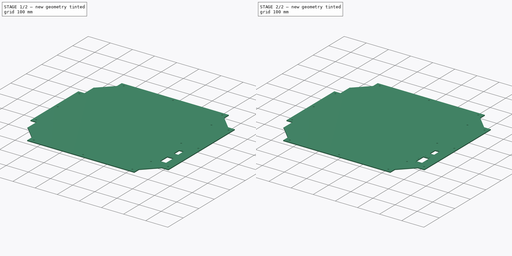
[diagram: build sequence overview — one tinted view per stage of 2, left to right]
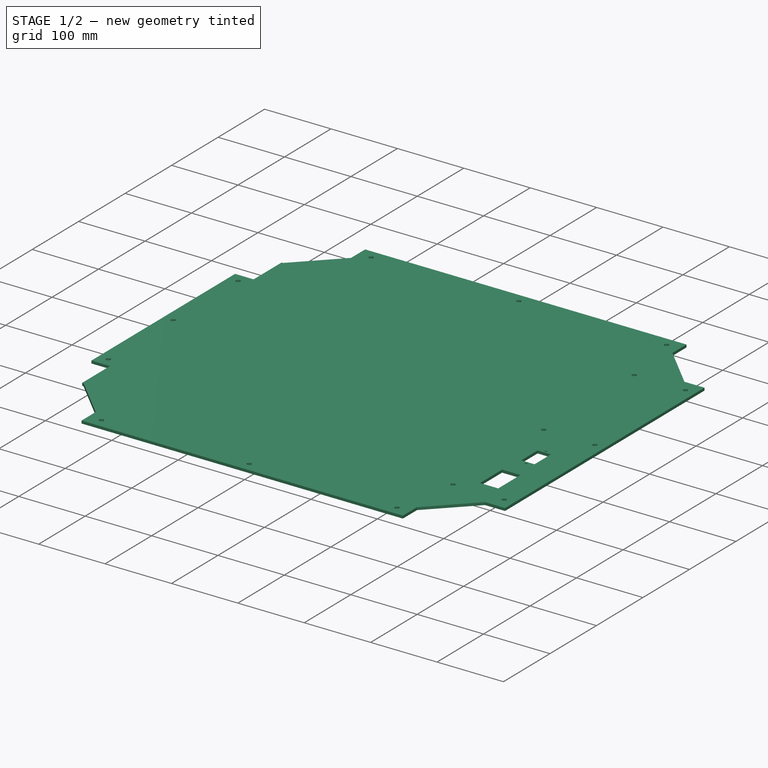
[diagram: stage 1 of 2 — iso view after this stage's code; geometry added in this stage tinted green]
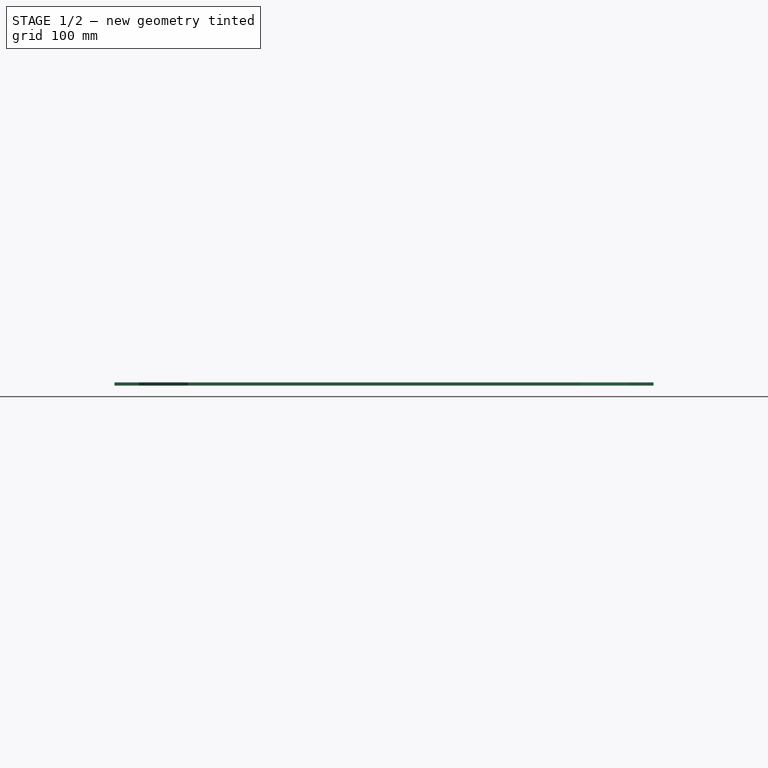
[diagram: stage 1 of 2 — front view after this stage's code; geometry added in this stage tinted green]
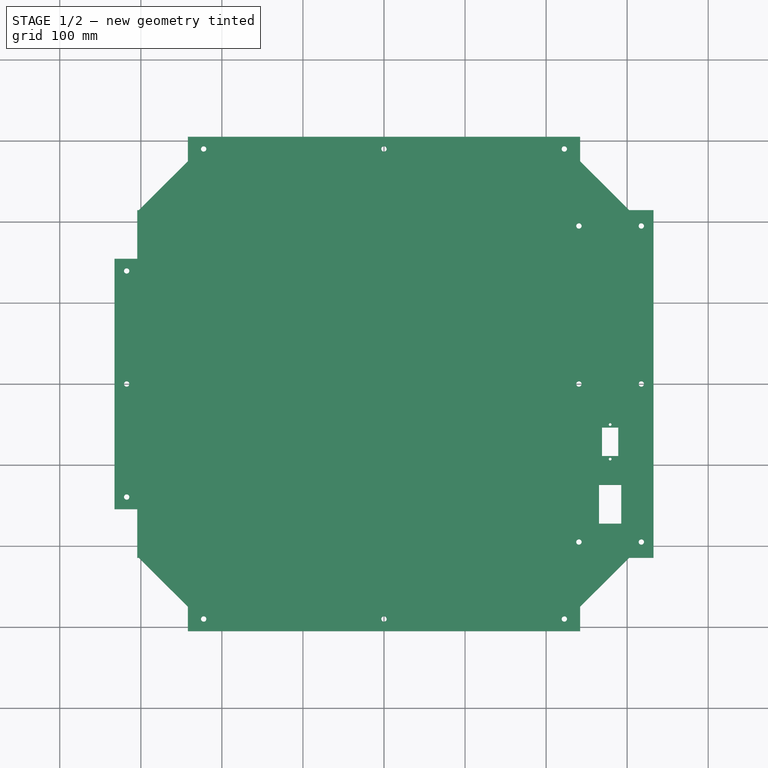
[diagram: stage 1 of 2 — top view after this stage's code; geometry added in this stage tinted green]
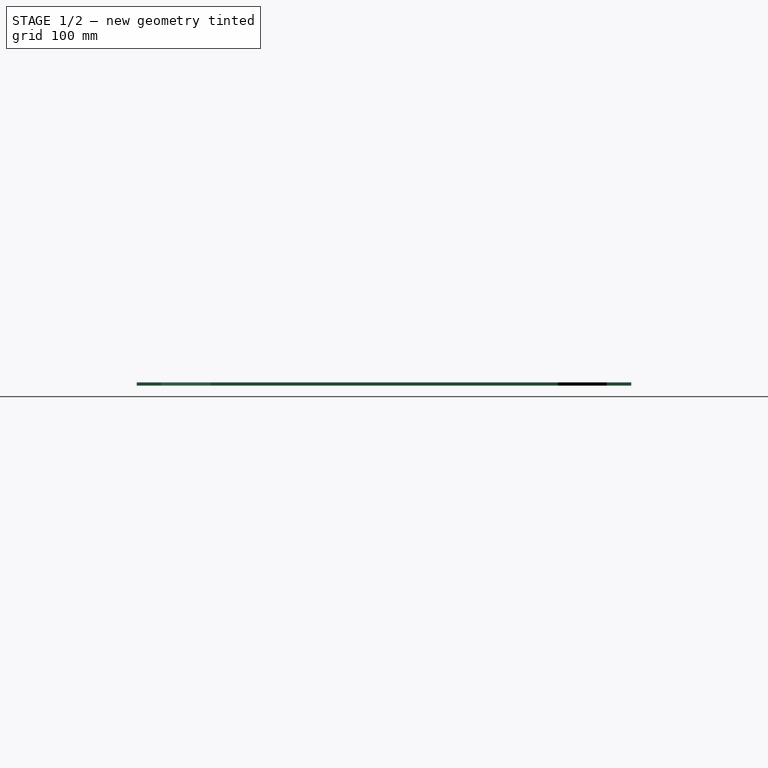
[diagram: stage 1 of 2 — right view after this stage's code; geometry added in this stage tinted green]
FCSTD DOCUMENT  (FreeCAD 0.20R)
Label: panel_side_right_400_v2
License: All rights reserved
LicenseURL: http://en.wikipedia.org/wiki/All_rights_reserved
objects: Sketcher::SketchObject×2, PartDesign::Pocket×2, Part::Feature×1, PartDesign::FeatureBase×1, PartDesign::Body×1
note: 9 computed .brp shape members not serialized (recipe doc carries the construction recipe); baked Part::Feature solids carry a one-line shape summary decoded from their .brp

FEATURE [Part::Feature] Defeatured003
  shape: bbox 665 x 610 x 4 mm, 47 faces (baked)
FEATURE [PartDesign::FeatureBase] BaseFeature
  BaseFeature = -> Defeatured003
FEATURE [Sketcher::SketchObject] Sketch
  ExternalGeometry = -> [BaseFeature]
  FullyConstrained = true
  MapMode = 5
  Support = -> [BaseFeature]
  sketch-geometry (4):
    g0: LineSegment StartX=265.25 StartY=-125.35 StartZ=0 EndX=292.75 EndY=-125.35 EndZ=0
    g1: LineSegment StartX=292.75 StartY=-125.35 StartZ=0 EndX=292.75 EndY=-124.55 EndZ=0
    g2: LineSegment StartX=292.75 StartY=-124.55 StartZ=0 EndX=265.25 EndY=-124.55 EndZ=0
    g3: LineSegment StartX=265.25 StartY=-124.55 StartZ=0 EndX=265.25 EndY=-125.35 EndZ=0
  constraints (12):
    c: DistanceX(g-3,g-3) = 27.5
    c: DistanceY(g-4,g-4) = 47
    c: Coincident(g0,g1)
    c: Coincident(g1,g2)
    c: Coincident(g2,g3)
    c: Coincident(g3,g0)
    c: Horizontal(g2)
    c: Vertical(g1)
    c: Vertical(g3)
    c: Coincident(g0,g-6)
    c: Coincident(g0,g-4)
    c: DistanceY(g1,g1) = 0.8
FEATURE [PartDesign::Pocket] Pocket
  BaseFeature = -> BaseFeature
  Direction = (0,0,-1)
  Length = 5
  Length2 = 5
  Profile = -> Sketch
  ReferenceAxis = -> Sketch [N_Axis]
  Type = 1
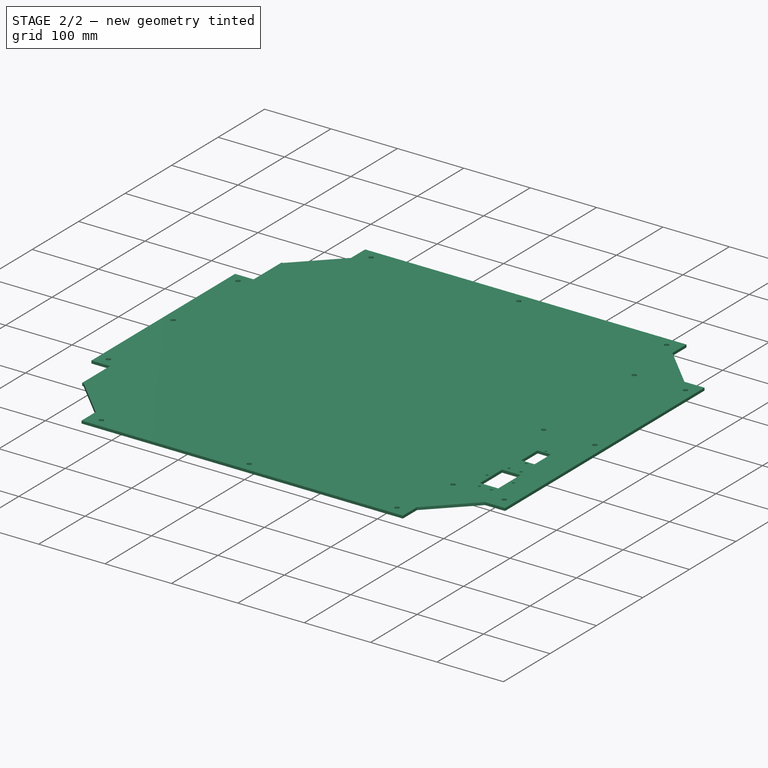
[diagram: stage 2 of 2 — iso view after this stage's code; geometry added in this stage tinted green]
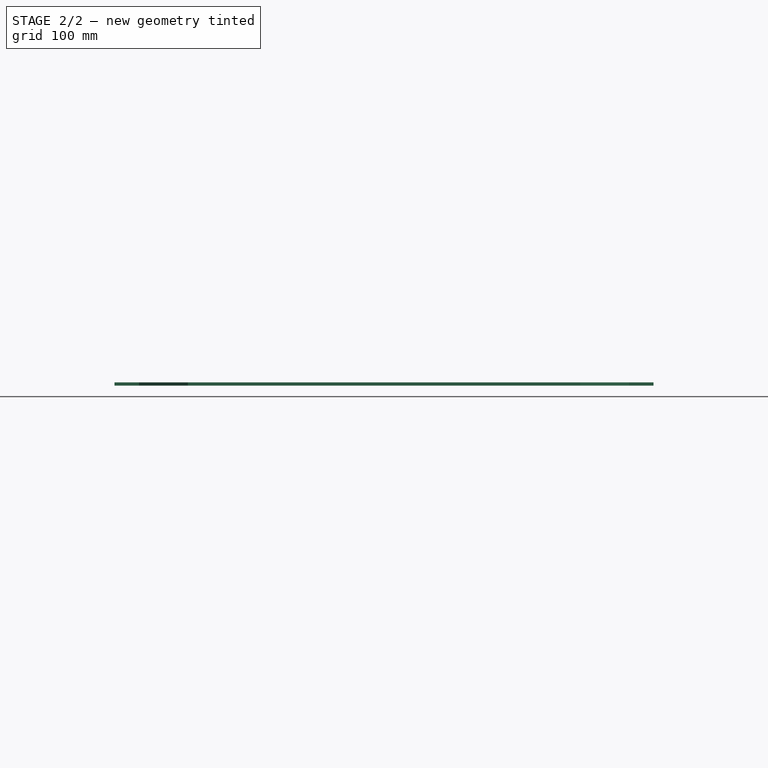
[diagram: stage 2 of 2 — front view after this stage's code; geometry added in this stage tinted green]
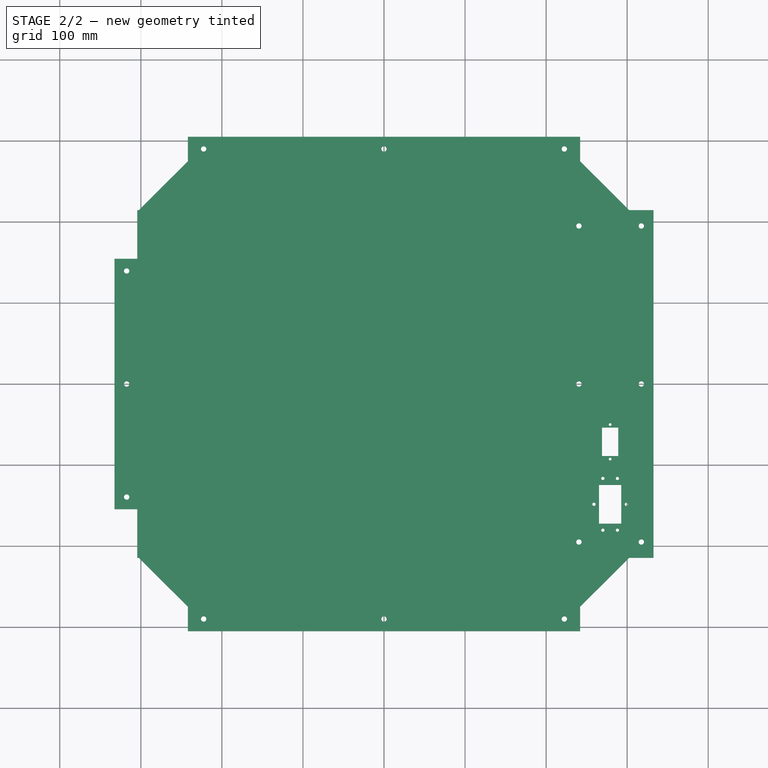
[diagram: stage 2 of 2 — top view after this stage's code; geometry added in this stage tinted green]
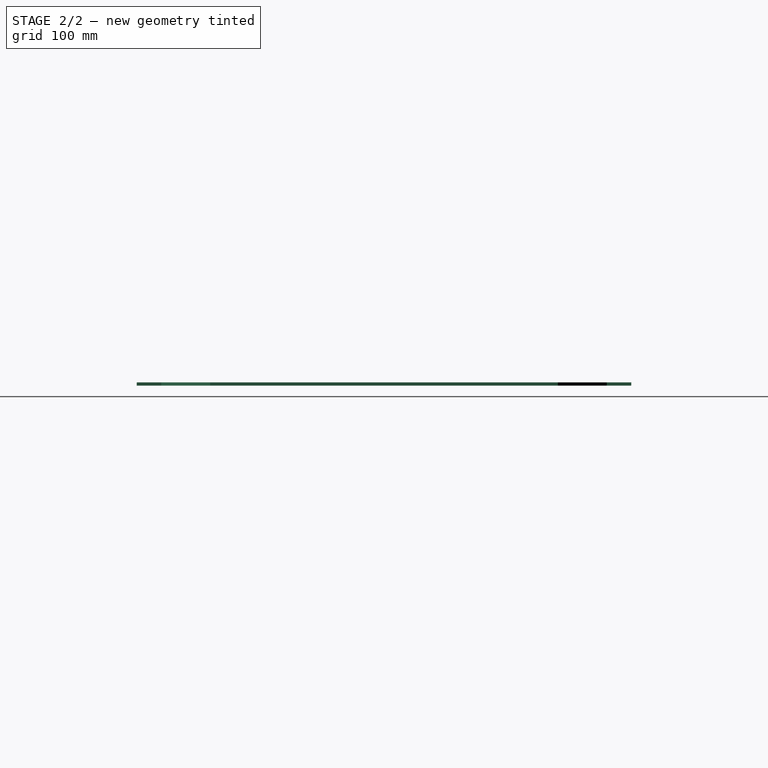
[diagram: stage 2 of 2 — right view after this stage's code; geometry added in this stage tinted green]
FEATURE [Sketcher::SketchObject] Sketch001
  ExternalGeometry = -> [Pocket]
  FullyConstrained = true
  MapMode = 5
  Support = -> [Pocket]
  sketch-geometry (12):
    g0: Circle CenterX=259 CenterY=-148.45 CenterZ=0 NormalX=0 NormalY=0 NormalZ=1 AngleXU=0 Radius=2
    g1: Circle CenterX=299 CenterY=-148.45 CenterZ=0 NormalX=0 NormalY=0 NormalZ=1 AngleXU=0 Radius=2
    g2: LineSegment StartX=259 StartY=-148.45 StartZ=0 EndX=299 EndY=-148.45 EndZ=0
    g3: LineSegment StartX=279 StartY=-124.55 StartZ=0 EndX=279 EndY=-172.35 EndZ=0
    g4: LineSegment StartX=270 StartY=-116.55 StartZ=0 EndX=288 EndY=-116.55 EndZ=0
    g5: LineSegment StartX=288 StartY=-116.55 StartZ=0 EndX=288 EndY=-180.35 EndZ=0
    g6: LineSegment StartX=288 StartY=-180.35 StartZ=0 EndX=270 EndY=-180.35 EndZ=0
    g7: LineSegment StartX=270 StartY=-180.35 StartZ=0 EndX=270 EndY=-116.55 EndZ=0
    g8: Circle CenterX=270 CenterY=-116.55 CenterZ=0 NormalX=0 NormalY=0 NormalZ=1 AngleXU=0 Radius=2
    g9: Circle CenterX=288 CenterY=-116.55 CenterZ=0 NormalX=0 NormalY=0 NormalZ=1 AngleXU=0 Radius=2
    g10: Circle CenterX=270 CenterY=-180.35 CenterZ=0 NormalX=0 NormalY=0 NormalZ=1 AngleXU=0 Radius=2
    g11: Circle CenterX=288 CenterY=-180.35 CenterZ=0 NormalX=0 NormalY=0 NormalZ=1 AngleXU=0 Radius=2
  constraints (28):
    c: Coincident(g2,g0)
    c: Coincident(g2,g1)
    c: Symmetric(g-3,g-5,g2)
    c: DistanceX(g2,g2) = 40
    c: PointOnObject(g3,g-3)
    c: PointOnObject(g3,g-4)
    c: Symmetric(g-3,g-3,g3)
    c: Symmetric(g1,g0,g3)
    c: Equal(g0,g1)
    c: Diameter(g0) = 4
    c: Coincident(g4,g5)
    c: Coincident(g5,g6)
    c: Coincident(g6,g7)
    c: Coincident(g7,g4)
    c: Horizontal(g6)
    c: Vertical(g7)
    c: Symmetric(g4,g4,g3)
    c: Symmetric(g4,g5,g2)
    c: Distance(g4,g-3) = 8
    c: DistanceX(g4,g4) = 18
    c: Coincident(g8,g4)
    c: Coincident(g4,g9)
    c: Coincident(g10,g6)
    c: Coincident(g11,g5)
    c: Equal(g10,g11)
    c: Equal(g11,g9)
    c: Equal(g9,g8)
    c: Equal(g8,g1)
FEATURE [PartDesign::Pocket] Pocket001
  BaseFeature = -> Pocket
  Direction = (0,0,-1)
  Length = 5
  Length2 = 5
  Profile = -> Sketch001
  ReferenceAxis = -> Sketch001 [N_Axis]
  Type = 0
FEATURE [PartDesign::Body] Body
  BaseFeature = -> Defeatured003
  Group = -> [BaseFeature,Sketch,Pocket,Sketch001,Pocket001]
  Origin = -> Origin
  Tip = -> Pocket001
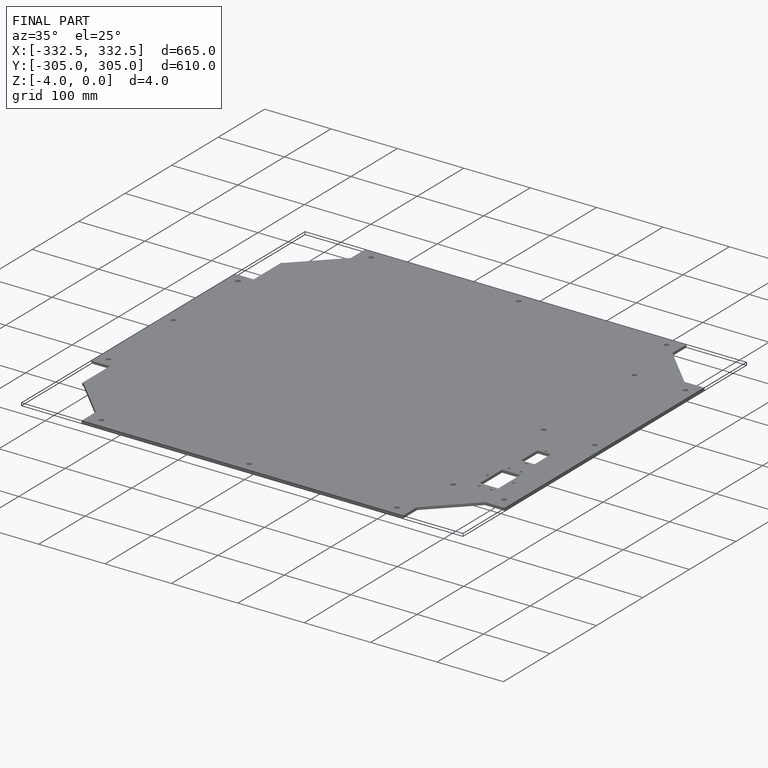
[diagram: finished part — iso view with bounding-box wireframe]
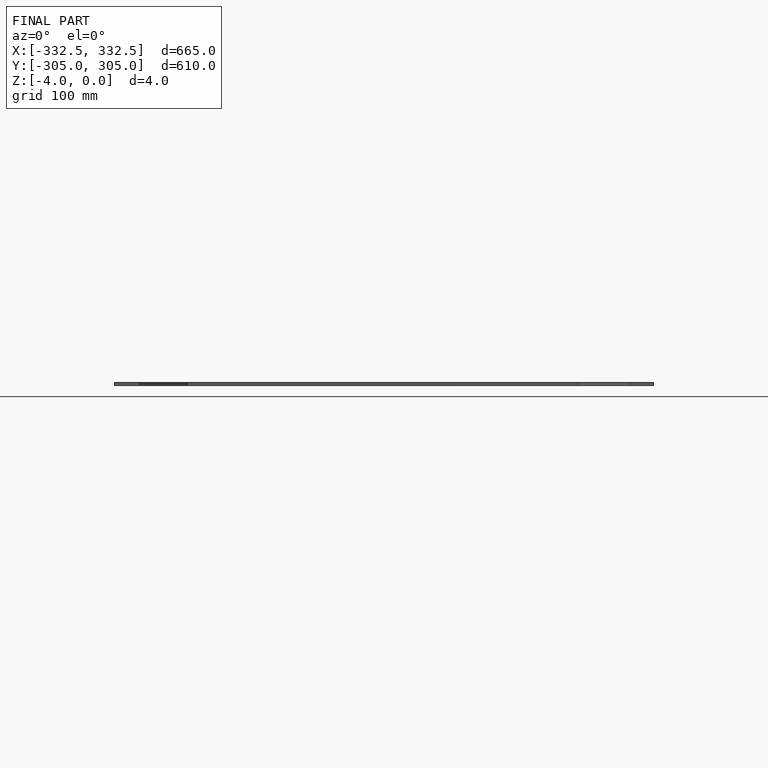
[diagram: finished part — front view with bounding-box wireframe]
